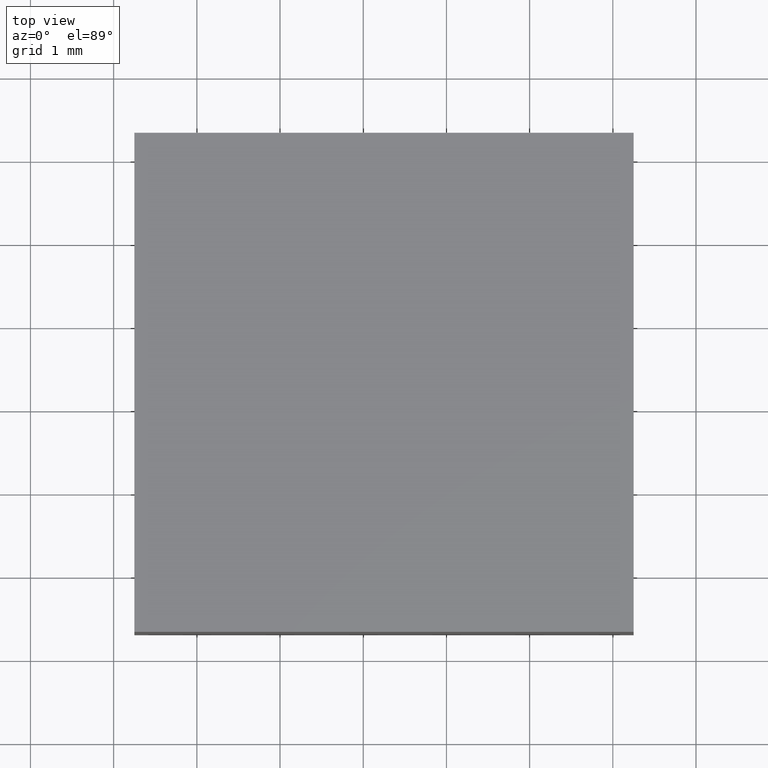
[diagram: clean part render]
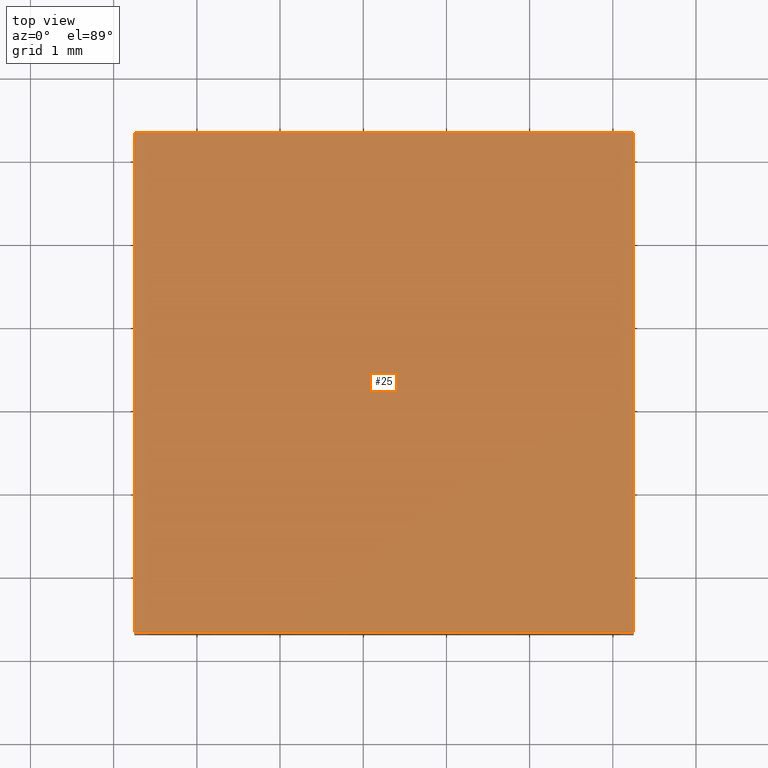
[diagram: same view with one face highlighted and labeled with its STEP entity id]
A machine part, top view. The second image highlights one B-rep face of the part: STEP entity #25.
In plain terms, the highlighted planar face has unit normal (-0, 0, 1).
Its self-contained STEP definition (entity closure, byte-faithful):
#9 = VERTEX_POINT ( 'NONE', #118 ) ;
#13 = LINE ( 'NONE', #171, #55 ) ;
#14 = VECTOR ( 'NONE', #96, 1000.000000000000000 ) ;
#19 = PLANE ( 'NONE',  #144 ) ;
#25 = ADVANCED_FACE ( 'NONE', ( #38 ), #19, .T. ) ;
#26 = ORIENTED_EDGE ( 'NONE', *, *, #90, .T. ) ;
#29 = VECTOR ( 'NONE', #152, 1000.000000000000000 ) ;
#36 = LINE ( 'NONE', #172, #14 ) ;
#37 = VERTEX_POINT ( 'NONE', #106 ) ;
#38 = FACE_OUTER_BOUND ( 'NONE', #151, .T. ) ;
#40 = VERTEX_POINT ( 'NONE', #59 ) ;
#44 = CARTESIAN_POINT ( 'NONE',  ( 0.0000000000000000000, 0.0000000000000000000, 2.299999999999999800 ) ) ;
#46 = CARTESIAN_POINT ( 'NONE',  ( 17.24958715517701800, 9.312648366905317900, 2.299999999999999800 ) ) ;
#55 = VECTOR ( 'NONE', #125, 1000.000000000000000 ) ;
#57 = EDGE_CURVE ( 'NONE', #146, #40, #137, .T. ) ;
#59 = CARTESIAN_POINT ( 'NONE',  ( 23.24958715517701800, 9.312648366905317900, 2.299999999999999800 ) ) ;
#63 = CARTESIAN_POINT ( 'NONE',  ( 17.24958715517701800, 9.312648366905317900, 2.299999999999999800 ) ) ;
#78 = DIRECTION ( 'NONE',  ( 1.000000000000000000, 0.0000000000000000000, 0.0000000000000000000 ) ) ;
#90 = EDGE_CURVE ( 'NONE', #9, #37, #130, .T. ) ;
#95 = EDGE_CURVE ( 'NONE', #40, #9, #13, .T. ) ;
#96 = DIRECTION ( 'NONE',  ( -5.782411586589356700E-016, -1.000000000000000000, 0.0000000000000000000 ) ) ;
#102 = ORIENTED_EDGE ( 'NONE', *, *, #57, .T. ) ;
#106 = CARTESIAN_POINT ( 'NONE',  ( 17.24958715517702100, 15.31264836690531800, 2.299999999999999800 ) ) ;
#114 = ORIENTED_EDGE ( 'NONE', *, *, #197, .T. ) ;
#118 = CARTESIAN_POINT ( 'NONE',  ( 23.24958715517702100, 15.31264836690531800, 2.299999999999999800 ) ) ;
#121 = DIRECTION ( 'NONE',  ( 1.000000000000000000, 0.0000000000000000000, 0.0000000000000000000 ) ) ;
#125 = DIRECTION ( 'NONE',  ( 5.782411586589356700E-016, 1.000000000000000000, -0.0000000000000000000 ) ) ;
#130 = LINE ( 'NONE', #188, #29 ) ;
#137 = LINE ( 'NONE', #63, #175 ) ;
#144 = AXIS2_PLACEMENT_3D ( 'NONE', #44, #169, #78 ) ;
#146 = VERTEX_POINT ( 'NONE', #46 ) ;
#151 = EDGE_LOOP ( 'NONE', ( #114, #102, #163, #26 ) ) ;
#152 = DIRECTION ( 'NONE',  ( -1.000000000000000000, -0.0000000000000000000, -0.0000000000000000000 ) ) ;
#163 = ORIENTED_EDGE ( 'NONE', *, *, #95, .T. ) ;
#169 = DIRECTION ( 'NONE',  ( -0.0000000000000000000, 0.0000000000000000000, 1.000000000000000000 ) ) ;
#171 = CARTESIAN_POINT ( 'NONE',  ( 23.24958715517702100, 15.31264836690531800, 2.299999999999999800 ) ) ;
#172 = CARTESIAN_POINT ( 'NONE',  ( 17.24958715517702100, 15.31264836690531800, 2.299999999999999800 ) ) ;
#175 = VECTOR ( 'NONE', #121, 1000.000000000000000 ) ;
#188 = CARTESIAN_POINT ( 'NONE',  ( 17.24958715517702100, 15.31264836690531800, 2.299999999999999800 ) ) ;
#197 = EDGE_CURVE ( 'NONE', #37, #146, #36, .T. ) ;